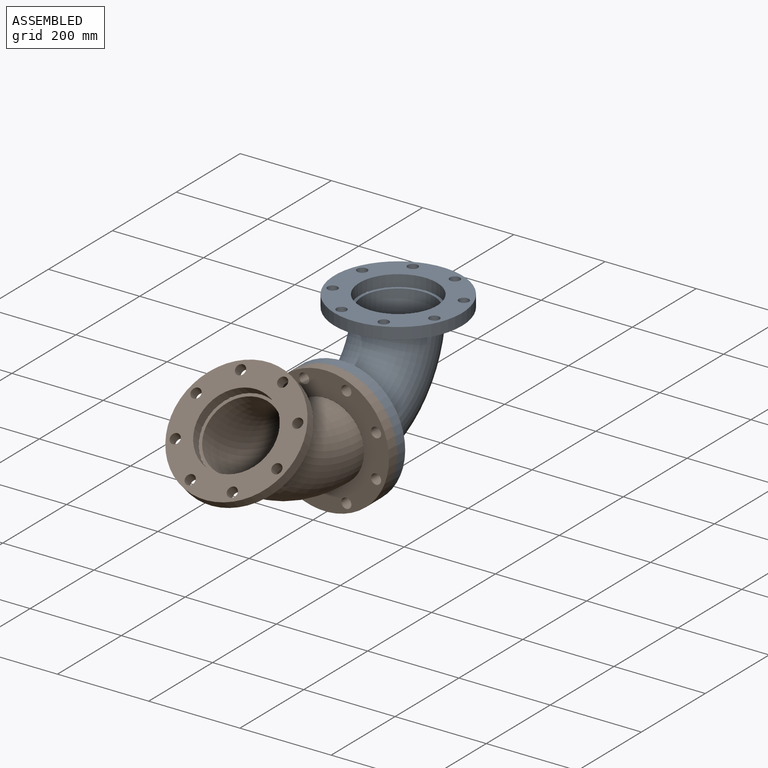
[diagram: assembled view]
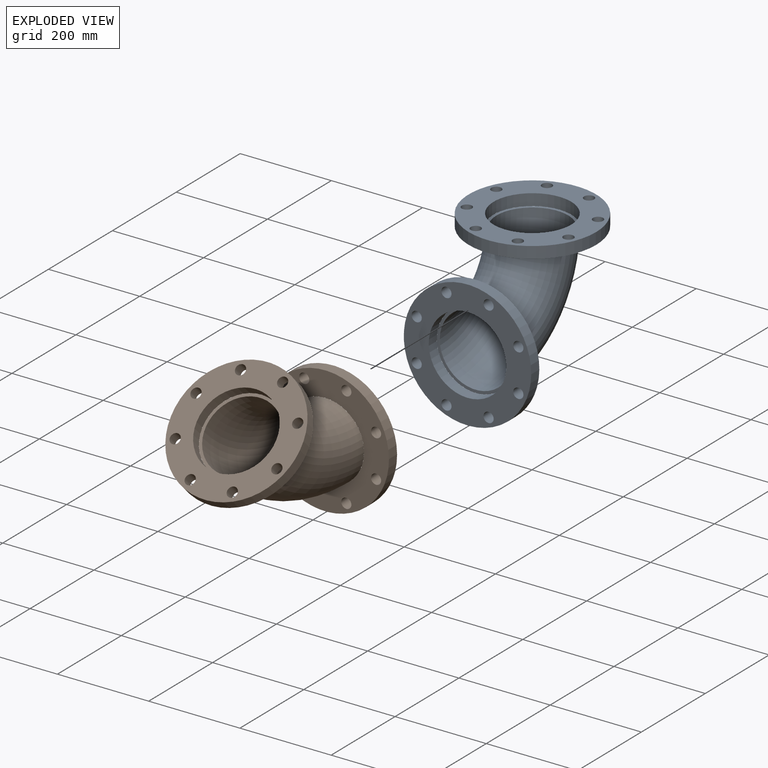
[diagram: exploded view]
GUIDED TOUR — MATED ASSEMBLY WITH SUBASSEMBLIES (Onshape document 01be604f880e54cd1879f29e, AutoMate assembly 01be604f880e54cd1879f29e_71f0f0e0feacdb94502af118_159b02445e68767dc81427c4_default)

This assembly has 6 component occurrences arranged in 2 top-level units: 0 individual components plus 2 subassemblies (S0, S1). The tour has two levels: first the top level, where each subassembly is treated as one rigid unit; then each subassembly is toured internally in its own section (nesting deeper than one subassembly level is flattened into its subassembly's section).

Components are labeled P0..P5 across the whole record; subassembly units are labeled S0..S1. A mate is a constraint between two units; its type names the relative motion it leaves free:
  CYLINDRICAL — leaves both rotation about and translation along the listed axis free,
  PLANAR — leaves sliding in the plane through the listed point (normal = the listed direction) and rotation about that normal free.
Axis/direction vectors are unit vectors and 'through' points are millimeter coordinates, both in the assembly's world frame.

TOP-LEVEL MATES (between units; each subassembly's internal mates are listed in its own section)
  1. CYLINDRICAL "Cylindrical 1": S0 <-> S1, axis (0.000, -1.000, 0.000) through (-186.74, 70.34, 268.65) mm
  2. PLANAR "Planar 1": S1 <-> S0, direction (0.000, 1.000, 0.000) through (-186.74, 44.94, 268.65) mm

TOP-LEVEL ASSEMBLY ORDER
  1. S1 — the base component [order verified]
  2. S0 [order verified]
Order-tag legend:
  [order verified] — this step's position reverses a verified removal order: the component was checked to insert without passing through the ones already placed.

Of the 6 component occurrences, 4 carry the full construction recipe — the FeatureScript program that regenerates the part's solid from scratch; the rest are supplied as boundary geometry only. Each toured unit is shown spotlighted twice — assembled, then exploded with a leader line back to its socket (green = recipe-attached component, orange = geometry-only, blue = subassembly unit; the rest desaturated gray).
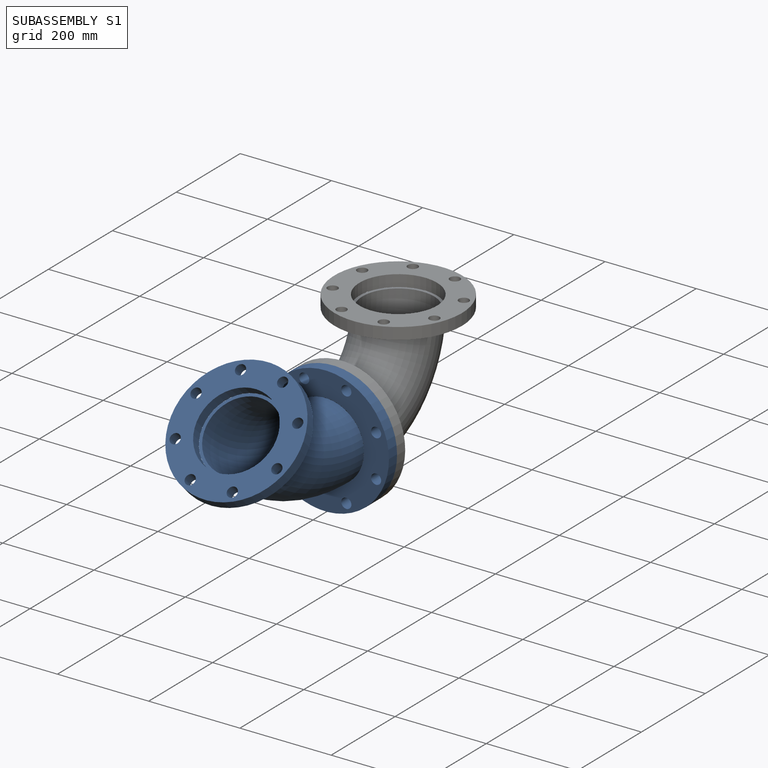
[diagram: subassembly S1 — assembled]
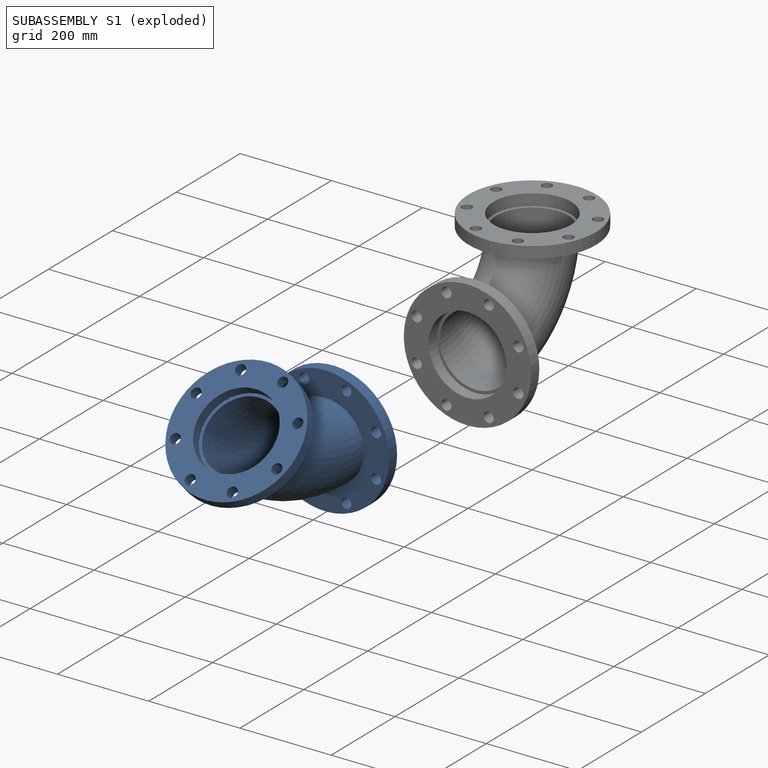
[diagram: subassembly S1 — exploded]
SUBASSEMBLY S1 — 3 components (P1, P2, P5), of which 2 recipe-attached; toured below.
Held by: CYLINDRICAL mate "Cylindrical 1" to S0; PLANAR mate "Planar 1" to S0.
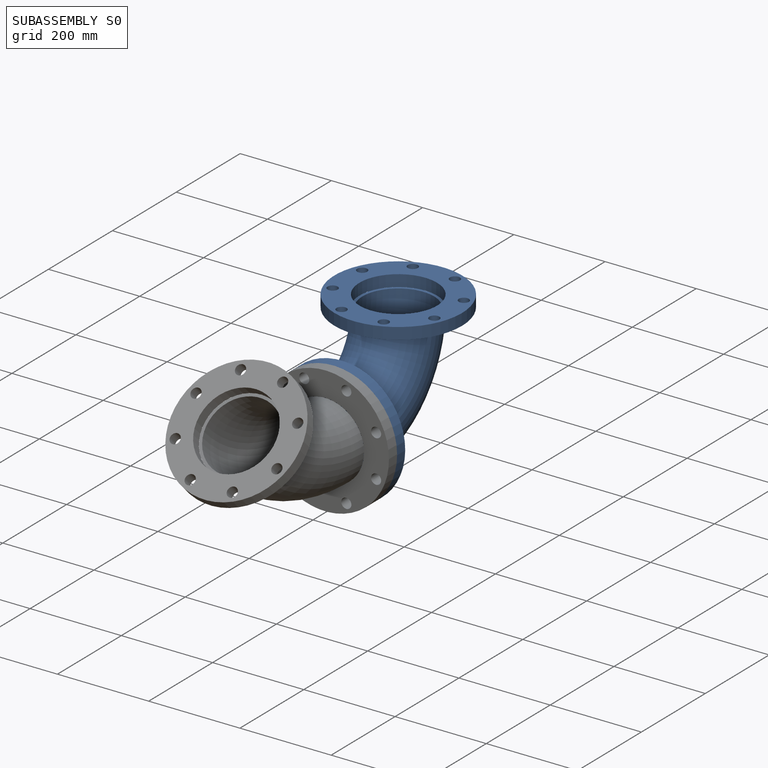
[diagram: subassembly S0 — assembled]
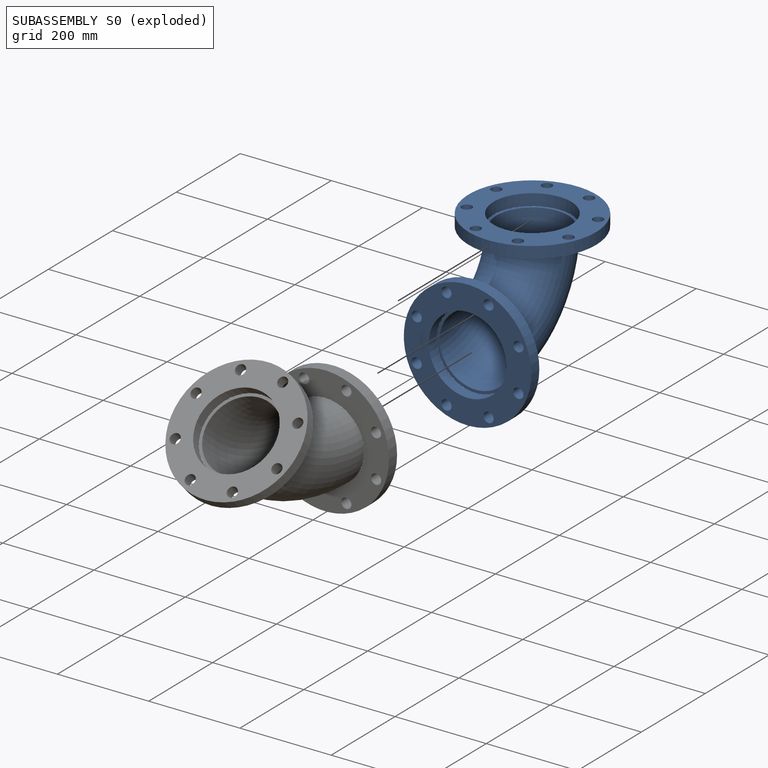
[diagram: subassembly S0 — exploded]
SUBASSEMBLY S0 — 3 components (P0, P3, P4), of which 2 recipe-attached; toured below.
Held by: CYLINDRICAL mate "Cylindrical 1" to S1; PLANAR mate "Planar 1" to S1.
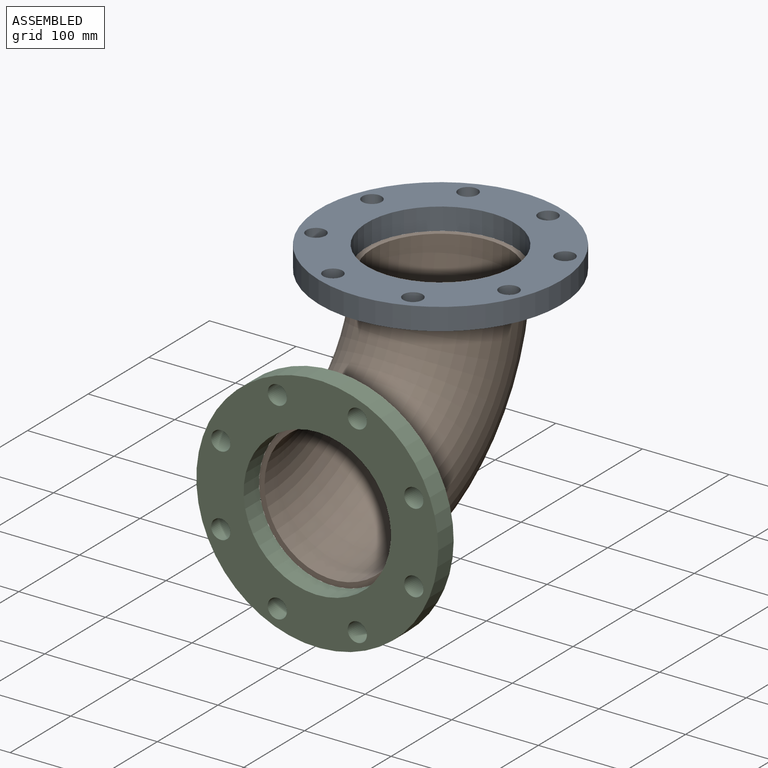
[diagram: subassembly S0 — assembled view]
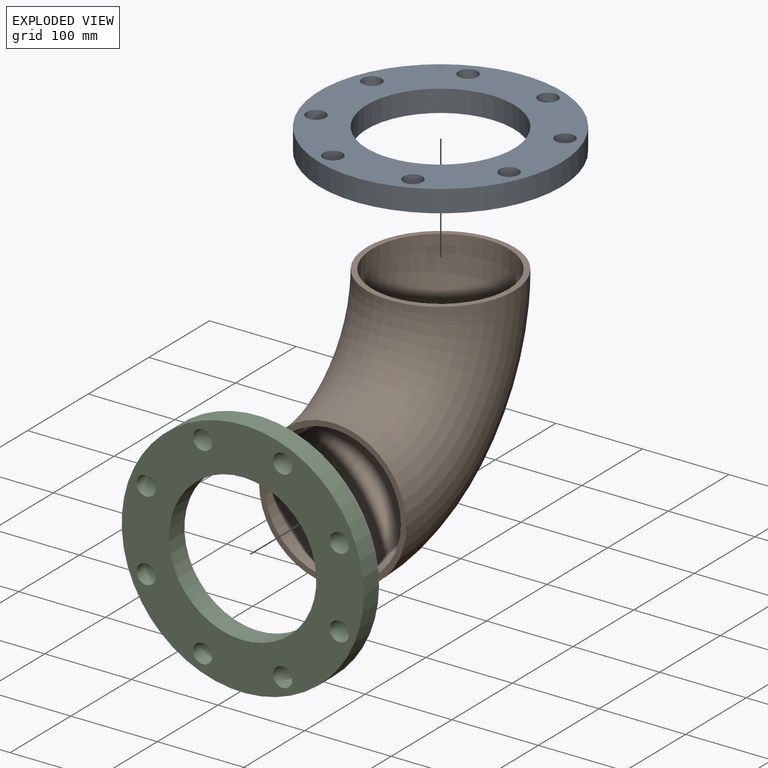
[diagram: subassembly S0 — exploded view]
SUBASSEMBLY S0 TOUR — 3 components, shown here in isolation at its own camera.

INTERNAL MATES
  1. PLANAR "Planar 2": P0 <-> P3, direction (0.000, 0.000, -1.000) through (-186.74, 248.14, 446.45) mm
  2. CYLINDRICAL "Cylindrical 1": P4 <-> P3, axis (0.000, -1.000, 0.000) through (-186.74, 44.94, 268.65) mm
  3. PLANAR "Planar 1": P4 <-> P3, direction (0.000, 1.000, 0.000) through (-186.74, 70.34, 268.65) mm
  4. CYLINDRICAL "Cylindrical 2": P0 <-> P3, axis (0.000, 0.000, 1.000) through (-186.74, 248.14, 471.85) mm

ASSEMBLY ORDER (within the subassembly)
  1. P3 — the base component [order verified]
  2. P0 [order verified]
  3. P4 [order verified]
Order-tag legend:
  [order verified] — this step's position reverses a verified removal order: the component was checked to insert without passing through the ones already placed.
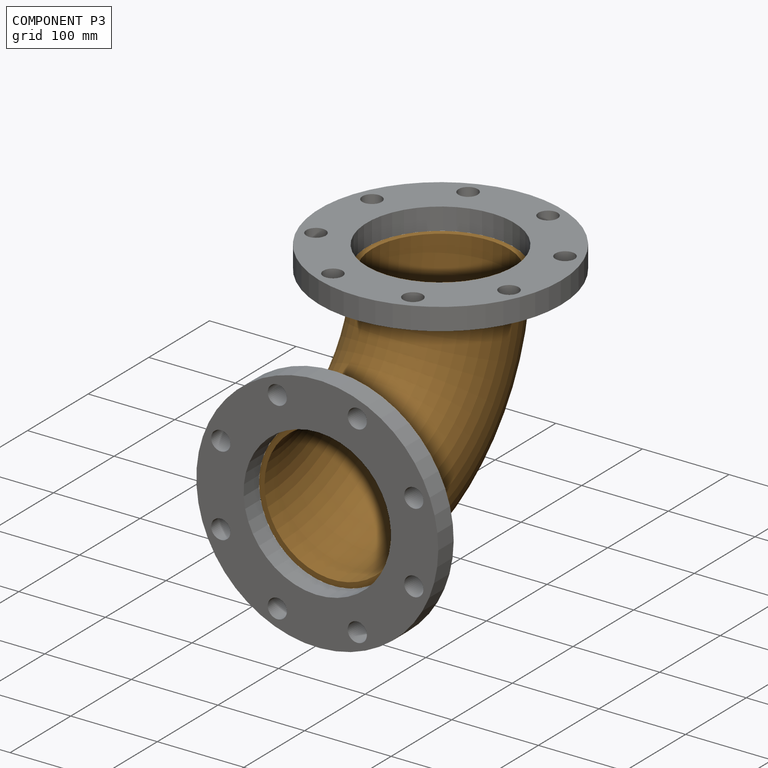
[diagram: component P3 — assembled]
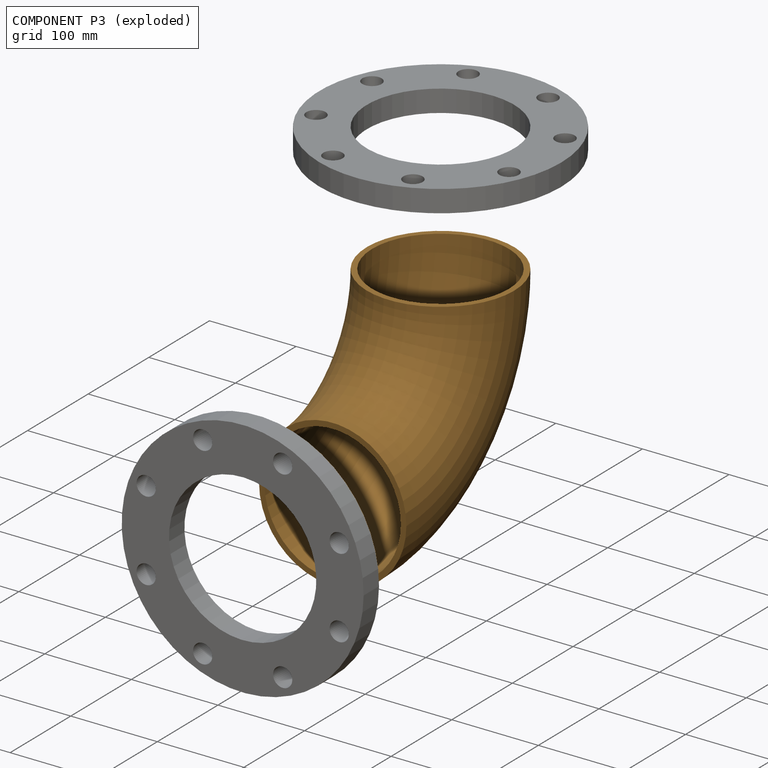
[diagram: component P3 — exploded]
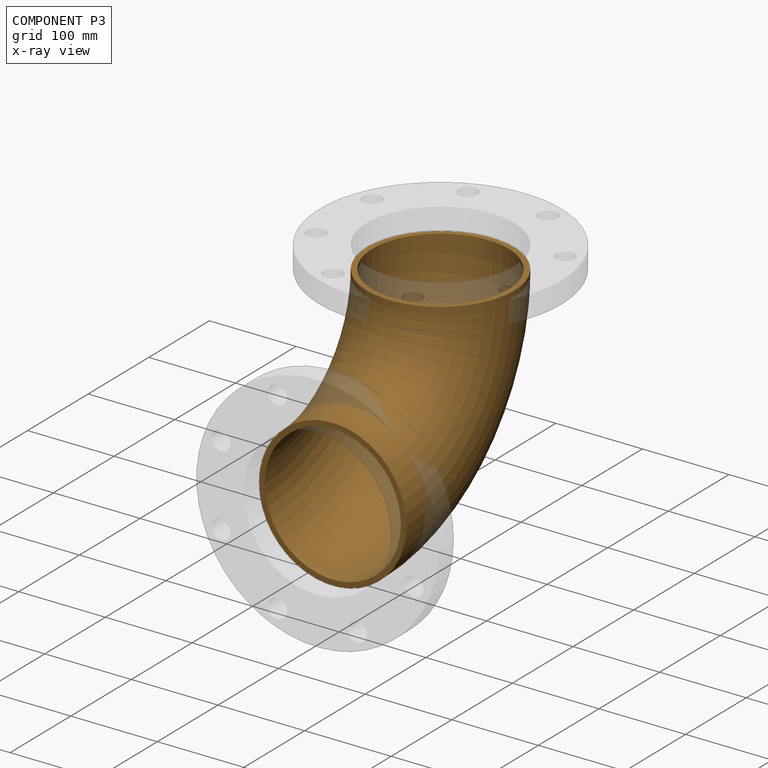
[diagram: component P3 — x-ray view]
COMPONENT P3 — geometry summary (no construction recipe available for this part):
  bounding box: 284.6 x 284.6 x 170.2 mm
  B-rep topology: 1 solid, 4 faces, 12 edges
  volume: 912785 mm^3 (7% of its bounding box)
  symmetry: mirror-symmetric across its x mid-plane
Held by: PLANAR mate "Planar 2" to P0; CYLINDRICAL mate "Cylindrical 1" to P4; PLANAR mate "Planar 1" to P4; CYLINDRICAL mate "Cylindrical 2" to P0.
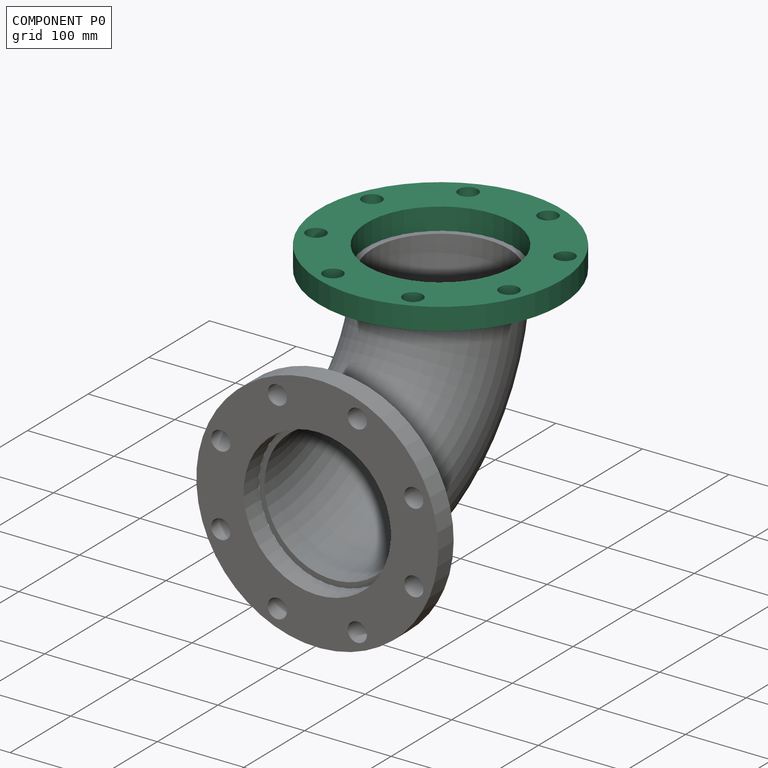
[diagram: component P0 — assembled]
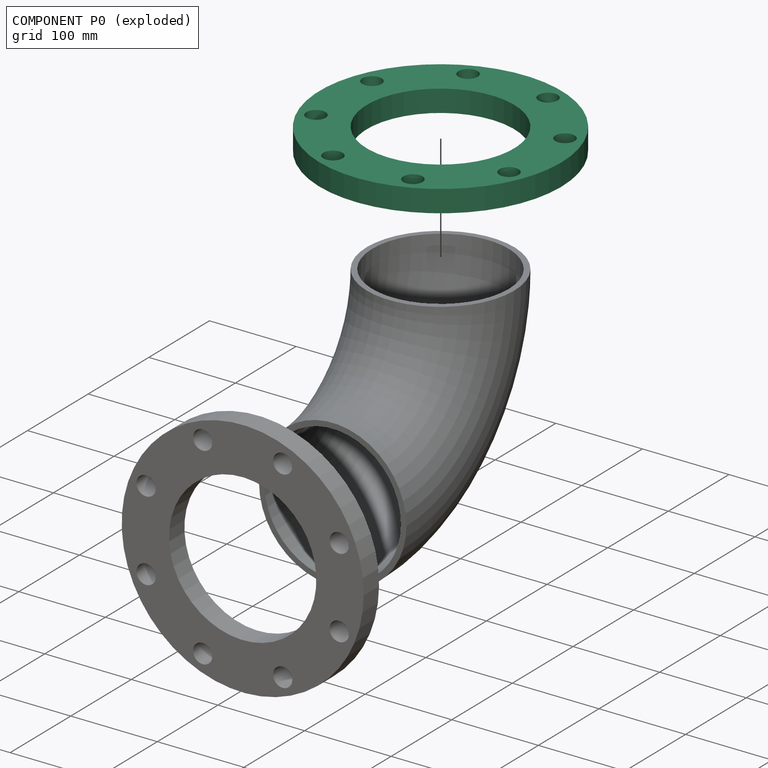
[diagram: component P0 — exploded]
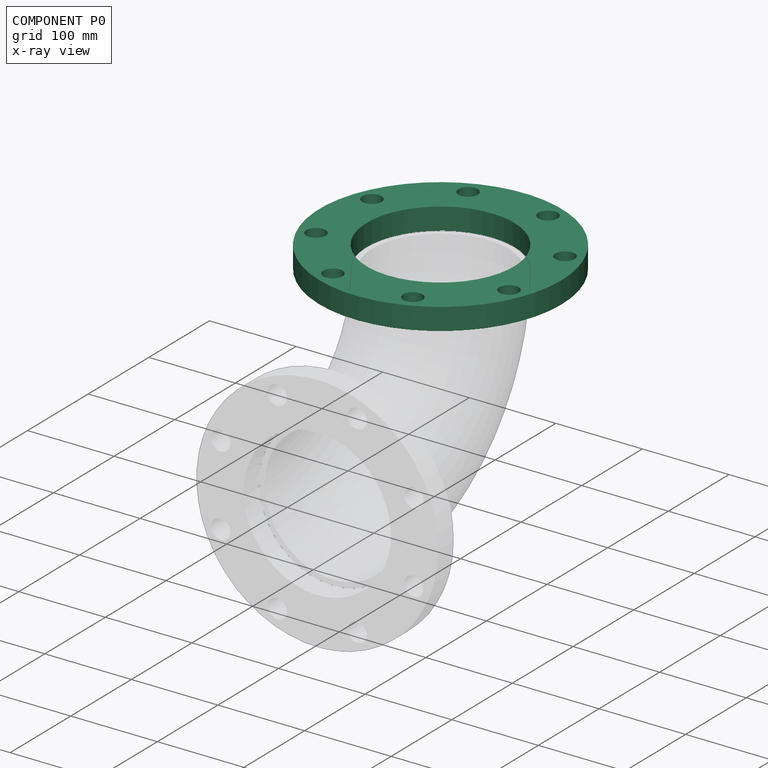
[diagram: component P0 — x-ray view]
COMPONENT P0 — recipe-attached (CADFS 00393971, mesh-verified: the recipe's output STEP matches this component's geometry to below the mesh-comparison resolution (tessellation chordal tolerance ~0.593 mm)).
Held by: PLANAR mate "Planar 2" to P3; CYLINDRICAL mate "Cylindrical 2" to P3.
Construction recipe (FeatureScript — the CAD program that rebuilds this solid; sketch coordinates are in the units given by the * unit suffixes, e.g. mm):

FeatureScript 1511;
import(path : "onshape/std/geometry.fs", version : "1511.0");
import(path : "onshape/std/common.fs", version : "1511.0");
const mm = millimeter;
const VERTEX = EntityType.VERTEX;
const EDGE = EntityType.EDGE;
const FACE = EntityType.FACE;
const BODY = EntityType.BODY;
function v(x, y){return vector(x, y);}
function OD(order){return orderDisambiguation(order);}
function OSD(set){return originalSetDisambiguation(set);}
function TD(topology){return topologyDisambiguation(topology);}
function TDD(query){return trueDependencyDisambiguation(query);}
function sQuery(a, b, c) {return sketchEntityQuery(a, b, c);}

annotation { "Feature Type Name" : "Feature", "Feature Type Description" : "" }
export const myFeature = defineFeature(function(context is Context, id is Id, definition is map)
    precondition{}
    {
        {
            var Q0;
            Q0=qCreatedBy(makeId("Front.planeOp"),FACE);
            var sketch = newSketch(context, id + "F0", { "sketchPlane" : qUnion([Q0])});
            skCircle(sketch, "E0", {"center": v(0, 0) * mm, "radius": 139.7 * mm});
            skCircle(sketch, "E1", {"center": v(0, 0) * mm, "radius": 85.1 * mm});
            skSolve(sketch);
        }
        {
            var Q0;
            Q0 = qSketchRegion(id + "F0", true);
            extrude(context, id + "F1", {"entities" : qUnion([Q0]), "depth" : 25.4 * mm});
        }
        {
            var Q0;
            Q0=makeQuery(id+"F1.opExtrude","CAP_FACE",FACE,{"disambiguationData":[OSD([sQuery(id+"F0.wireOp",EDGE,"E0"),sQuery(id+"F0.wireOp",EDGE,"E1")])],"isStart":false});
            var sketch = newSketch(context, id + "F2", { "sketchPlane" : qUnion([Q0])});
            skPoint(sketch, "E2", {"position": v(0, 120.65) * mm});
            skCircle(sketch, "E3", {"center": v(0, 0) * mm, "radius": 120.65 * mm, "construction": true});
            skPoint(sketch, "E4", {"position": v(-120.65, 0) * mm});
            skPoint(sketch, "E5", {"position": v(0, -120.65) * mm});
            skPoint(sketch, "E6", {"position": v(120.65, 0) * mm});
            skPoint(sketch, "E7", {"position": v(85.31, -85.31) * mm});
            skPoint(sketch, "E8", {"position": v(-85.31, -85.31) * mm});
            skPoint(sketch, "E9", {"position": v(-85.31, 85.31) * mm});
            skLineSegment(sketch, "E10", {"start": v(0, 0) * mm, "end": v(-124.95, -124.95) * mm, "construction": true});
            skPoint(sketch, "E11", {"position": v(85.31, 85.31) * mm});
            skSolve(sketch);
        }
        {
            var Q0;
            Q0=sQuery(id+"F2.wireOp",VERTEX,"E9");
            var Q1;
            Q1=sQuery(id+"F2.wireOp",VERTEX,"E2");
            var Q2;
            Q2=sQuery(id+"F2.wireOp",VERTEX,"E11");
            var Q3;
            Q3=sQuery(id+"F2.wireOp",VERTEX,"E6");
            var Q4;
            Q4=sQuery(id+"F2.wireOp",VERTEX,"E7");
            var Q5;
            Q5=sQuery(id+"F2.wireOp",VERTEX,"E5");
            var Q6;
            Q6=sQuery(id+"F2.wireOp",VERTEX,"E8");
            var Q7;
            Q7=sQuery(id+"F2.wireOp",VERTEX,"E4");
            var Q8;
            Q8=makeQuery(id+"F1.opExtrude","SWEPT_BODY",BODY,{"disambiguationData":[OSD([sQuery(id+"F0.wireOp",EDGE,"E0"),sQuery(id+"F0.wireOp",EDGE,"E1")])]});
            hole(context, id + "F3", {"style" : HoleStyle.SIMPLE, "endStyle" : HoleEndStyle.THROUGH, "holeDiameter" : 22.22 * mm, "isTappedThrough" : true, "tappedDepth" : 12.7 * mm, "tapClearance" : 3, "locations" : qUnion([Q0, Q1, Q2, Q3, Q4, Q5, Q6, Q7]), "scope" : qUnion([Q8])});
        }
    });
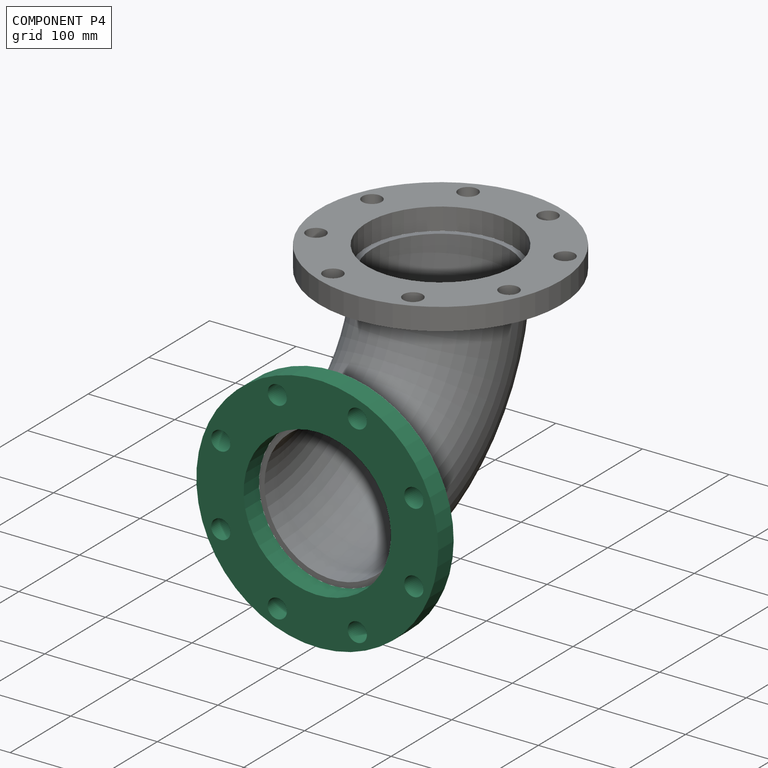
[diagram: component P4 — assembled]
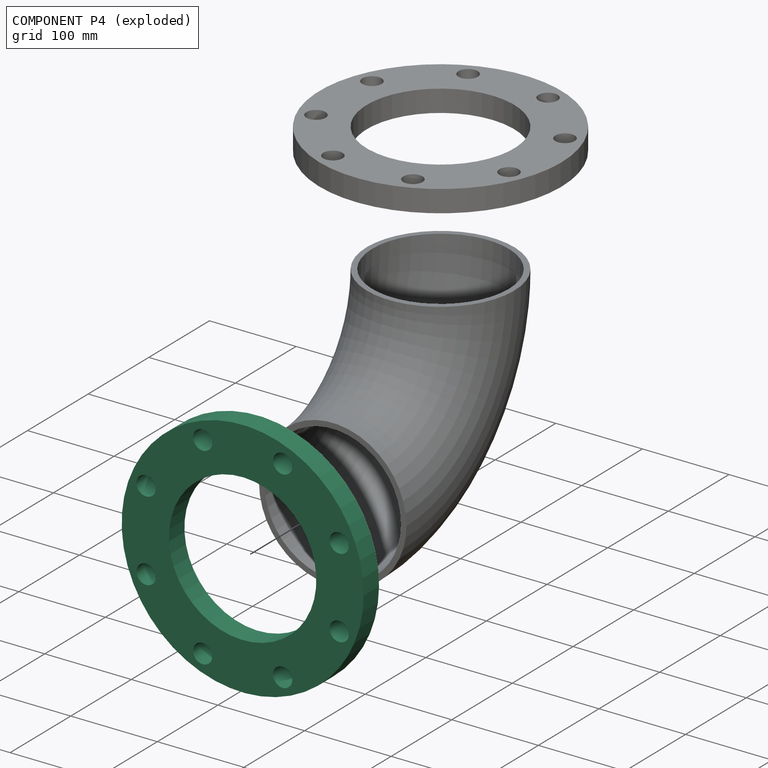
[diagram: component P4 — exploded]
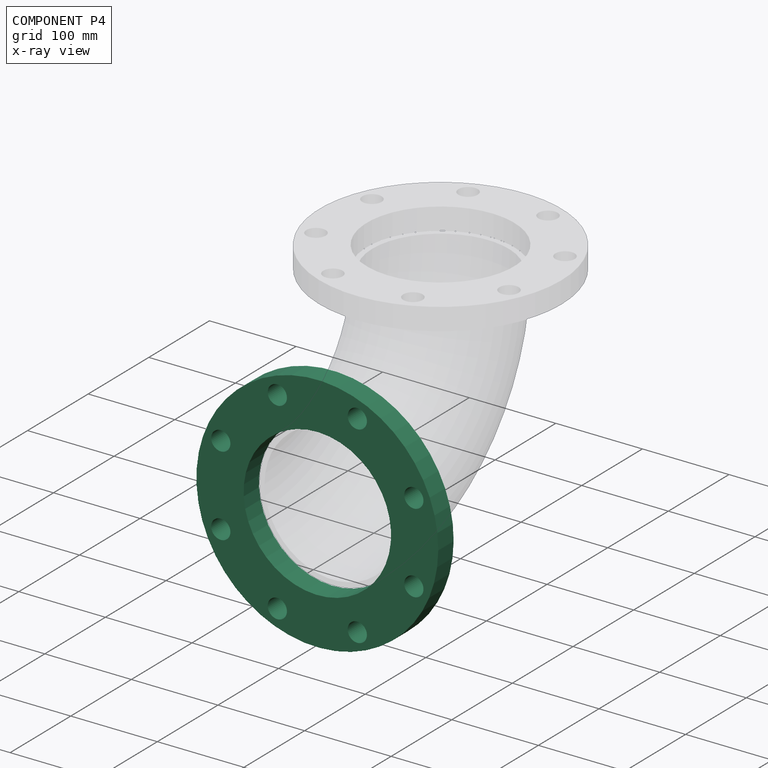
[diagram: component P4 — x-ray view]
COMPONENT P4 — same part as P0 (CADFS 00393971); its construction recipe is shown at P0.
Held by: CYLINDRICAL mate "Cylindrical 1" to P3; PLANAR mate "Planar 1" to P3.
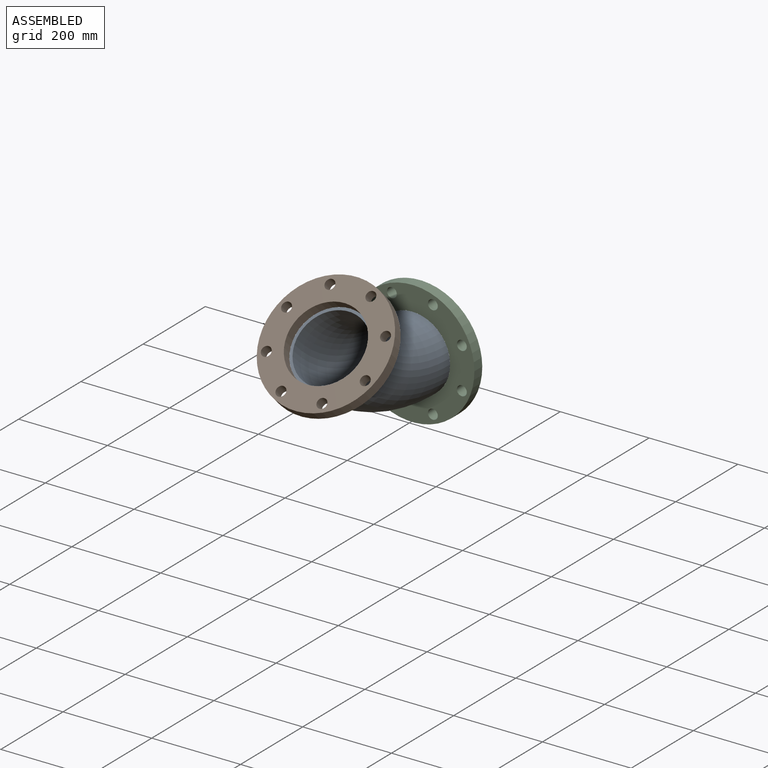
[diagram: subassembly S1 — assembled view]
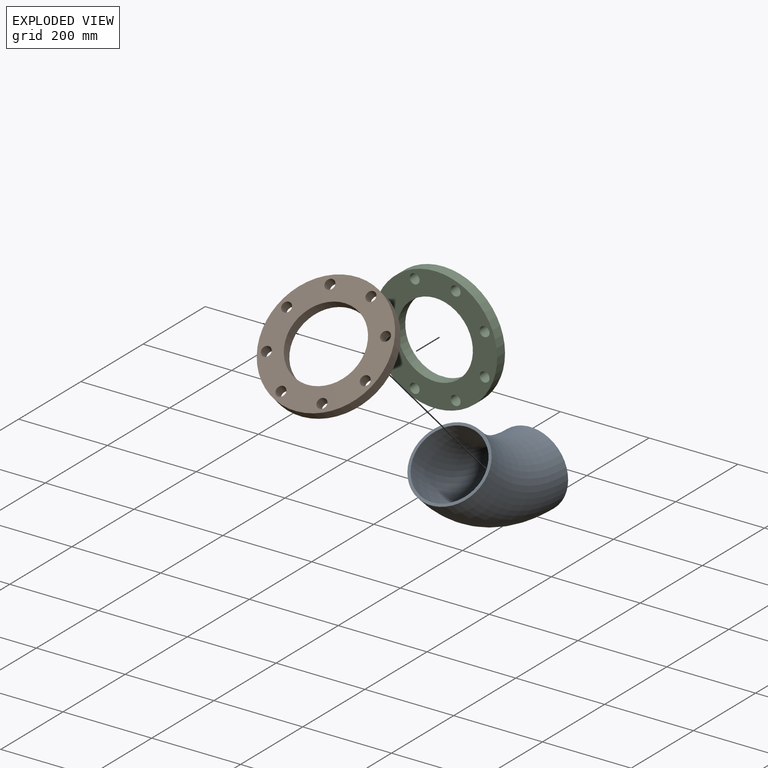
[diagram: subassembly S1 — exploded view]
SUBASSEMBLY S1 TOUR — 3 components, shown here in isolation at its own camera.

INTERNAL MATES
  1. PLANAR "Planar 1": P2 <-> P1, direction (0.000, 0.707, -0.707) through (-186.74, -240.63, 376.42) mm
  2. CYLINDRICAL "Cylindrical 2": P1 <-> P5, axis (0.000, 1.000, 0.000) through (-186.74, 19.54, 268.65) mm
  3. CYLINDRICAL "Cylindrical 1": P2 <-> P1, axis (0.000, 0.707, -0.707) through (-186.74, -249.61, 385.40) mm
  4. PLANAR "Planar 2": P5 <-> P1, direction (0.000, -1.000, 0.000) through (-186.74, 19.54, 268.65) mm
  5. PLANAR "Planar 2": P5 <-> P1, direction (0.000, -1.000, 0.000) through (-186.74, 19.54, 268.65) mm
  6. PLANAR "Planar 1": P2 <-> P1, direction (0.000, 0.707, -0.707) through (-186.74, -240.63, 376.42) mm
  7. CYLINDRICAL "Cylindrical 1": P2 <-> P1, axis (0.000, 0.707, -0.707) through (-186.74, -249.61, 385.40) mm
  8. CYLINDRICAL "Cylindrical 2": P1 <-> P5, axis (0.000, 1.000, 0.000) through (-186.74, 19.54, 268.65) mm

ASSEMBLY ORDER (within the subassembly)
  1. P2 — the base component [order verified]
  2. P1 [order verified]
  3. P5 [order verified]
Order-tag legend:
  [order verified] — this step's position reverses a verified removal order: the component was checked to insert without passing through the ones already placed.
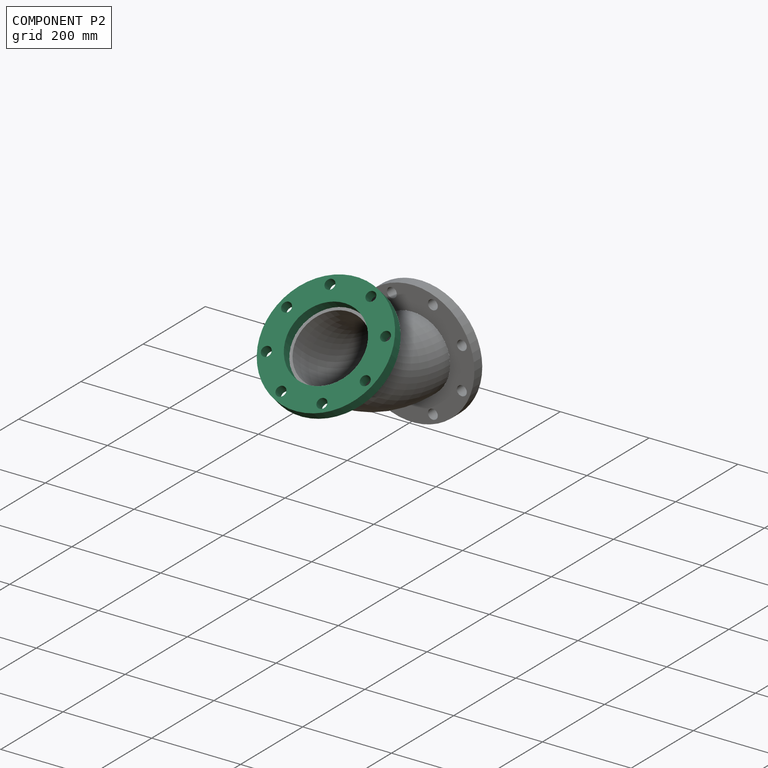
[diagram: component P2 — assembled]
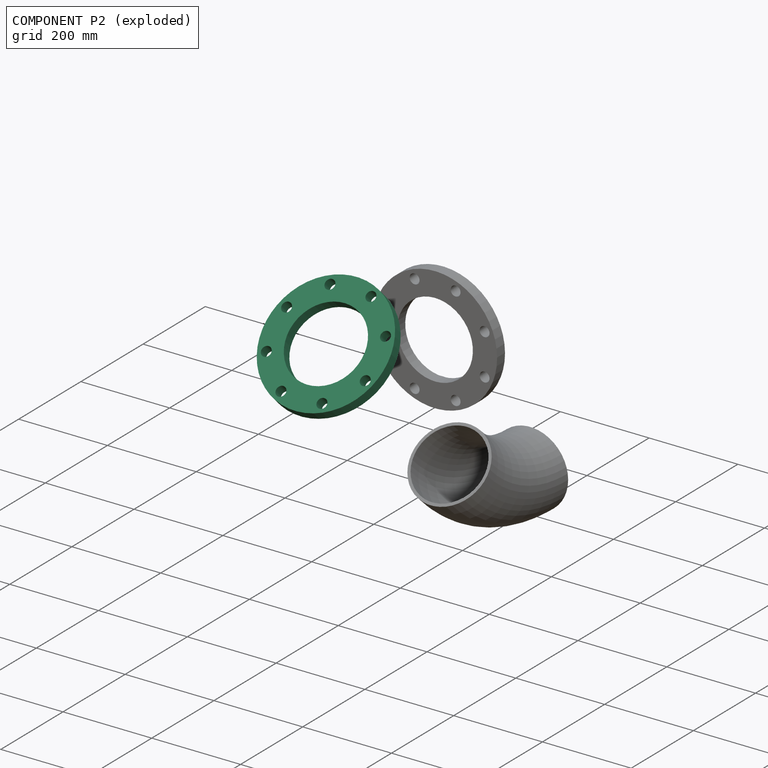
[diagram: component P2 — exploded]
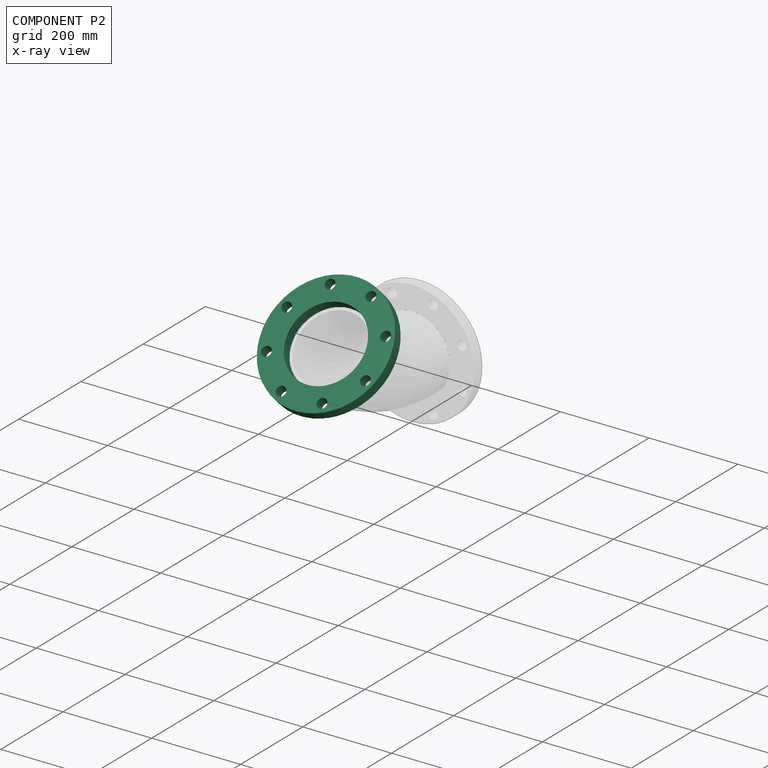
[diagram: component P2 — x-ray view]
COMPONENT P2 — recipe-attached (CADFS 00393971, mesh-verified: the recipe's output STEP matches this component's geometry to below the mesh-comparison resolution (tessellation chordal tolerance ~0.593 mm)).
Held by: PLANAR mate "Planar 1" to P1; CYLINDRICAL mate "Cylindrical 1" to P1; PLANAR mate "Planar 1" to P1; CYLINDRICAL mate "Cylindrical 1" to P1.
Construction recipe (FeatureScript — the CAD program that rebuilds this solid; sketch coordinates are in the units given by the * unit suffixes, e.g. mm):

FeatureScript 1511;
import(path : "onshape/std/geometry.fs", version : "1511.0");
import(path : "onshape/std/common.fs", version : "1511.0");
const mm = millimeter;
const VERTEX = EntityType.VERTEX;
const EDGE = EntityType.EDGE;
const FACE = EntityType.FACE;
const BODY = EntityType.BODY;
function v(x, y){return vector(x, y);}
function OD(order){return orderDisambiguation(order);}
function OSD(set){return originalSetDisambiguation(set);}
function TD(topology){return topologyDisambiguation(topology);}
function TDD(query){return trueDependencyDisambiguation(query);}
function sQuery(a, b, c) {return sketchEntityQuery(a, b, c);}

annotation { "Feature Type Name" : "Feature", "Feature Type Description" : "" }
export const myFeature = defineFeature(function(context is Context, id is Id, definition is map)
    precondition{}
    {
        {
            var Q0;
            Q0=qCreatedBy(makeId("Front.planeOp"),FACE);
            var sketch = newSketch(context, id + "F0", { "sketchPlane" : qUnion([Q0])});
            skCircle(sketch, "E0", {"center": v(0, 0) * mm, "radius": 139.7 * mm});
            skCircle(sketch, "E1", {"center": v(0, 0) * mm, "radius": 85.1 * mm});
            skSolve(sketch);
        }
        {
            var Q0;
            Q0 = qSketchRegion(id + "F0", true);
            extrude(context, id + "F1", {"entities" : qUnion([Q0]), "depth" : 25.4 * mm});
        }
        {
            var Q0;
            Q0=makeQuery(id+"F1.opExtrude","CAP_FACE",FACE,{"disambiguationData":[OSD([sQuery(id+"F0.wireOp",EDGE,"E0"),sQuery(id+"F0.wireOp",EDGE,"E1")])],"isStart":false});
            var sketch = newSketch(context, id + "F2", { "sketchPlane" : qUnion([Q0])});
            skPoint(sketch, "E2", {"position": v(0, 120.65) * mm});
            skCircle(sketch, "E3", {"center": v(0, 0) * mm, "radius": 120.65 * mm, "construction": true});
            skPoint(sketch, "E4", {"position": v(-120.65, 0) * mm});
            skPoint(sketch, "E5", {"position": v(0, -120.65) * mm});
            skPoint(sketch, "E6", {"position": v(120.65, 0) * mm});
            skPoint(sketch, "E7", {"position": v(85.31, -85.31) * mm});
            skPoint(sketch, "E8", {"position": v(-85.31, -85.31) * mm});
            skPoint(sketch, "E9", {"position": v(-85.31, 85.31) * mm});
            skLineSegment(sketch, "E10", {"start": v(0, 0) * mm, "end": v(-124.95, -124.95) * mm, "construction": true});
            skPoint(sketch, "E11", {"position": v(85.31, 85.31) * mm});
            skSolve(sketch);
        }
        {
            var Q0;
            Q0=sQuery(id+"F2.wireOp",VERTEX,"E9");
            var Q1;
            Q1=sQuery(id+"F2.wireOp",VERTEX,"E2");
            var Q2;
            Q2=sQuery(id+"F2.wireOp",VERTEX,"E11");
            var Q3;
            Q3=sQuery(id+"F2.wireOp",VERTEX,"E6");
            var Q4;
            Q4=sQuery(id+"F2.wireOp",VERTEX,"E7");
            var Q5;
            Q5=sQuery(id+"F2.wireOp",VERTEX,"E5");
            var Q6;
            Q6=sQuery(id+"F2.wireOp",VERTEX,"E8");
            var Q7;
            Q7=sQuery(id+"F2.wireOp",VERTEX,"E4");
            var Q8;
            Q8=makeQuery(id+"F1.opExtrude","SWEPT_BODY",BODY,{"disambiguationData":[OSD([sQuery(id+"F0.wireOp",EDGE,"E0"),sQuery(id+"F0.wireOp",EDGE,"E1")])]});
            hole(context, id + "F3", {"style" : HoleStyle.SIMPLE, "endStyle" : HoleEndStyle.THROUGH, "holeDiameter" : 22.22 * mm, "isTappedThrough" : true, "tappedDepth" : 12.7 * mm, "tapClearance" : 3, "locations" : qUnion([Q0, Q1, Q2, Q3, Q4, Q5, Q6, Q7]), "scope" : qUnion([Q8])});
        }
    });
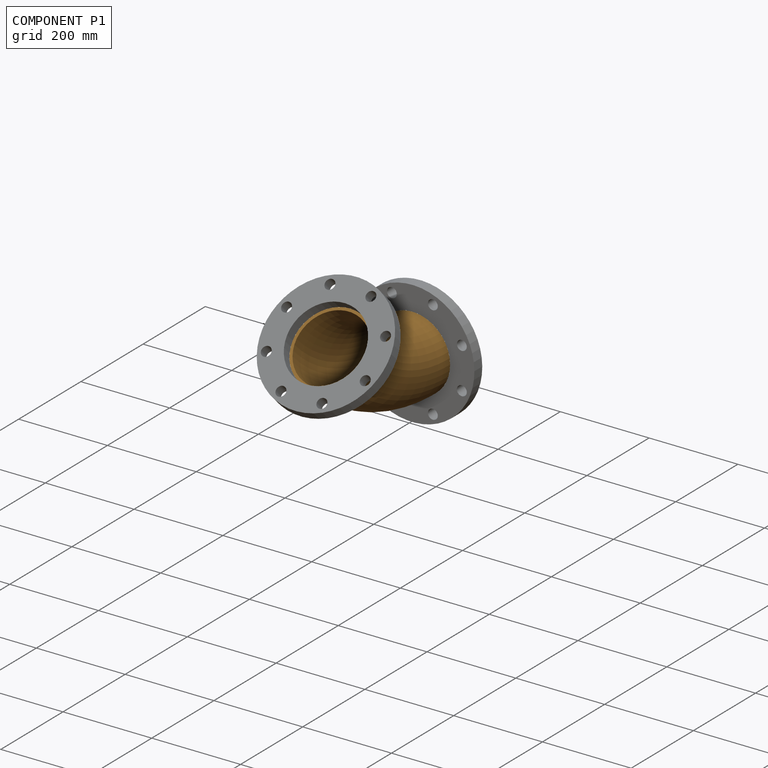
[diagram: component P1 — assembled]
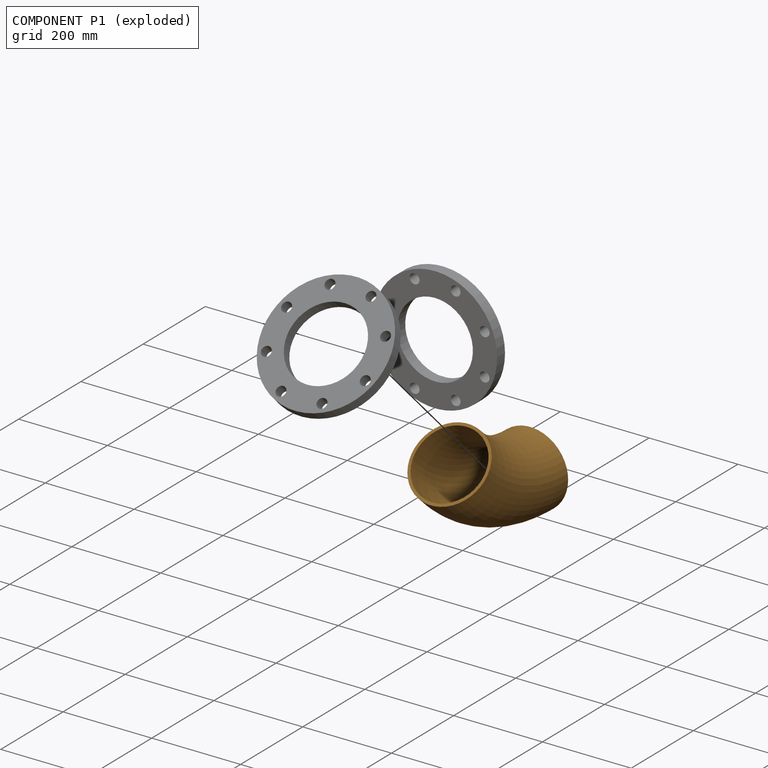
[diagram: component P1 — exploded]
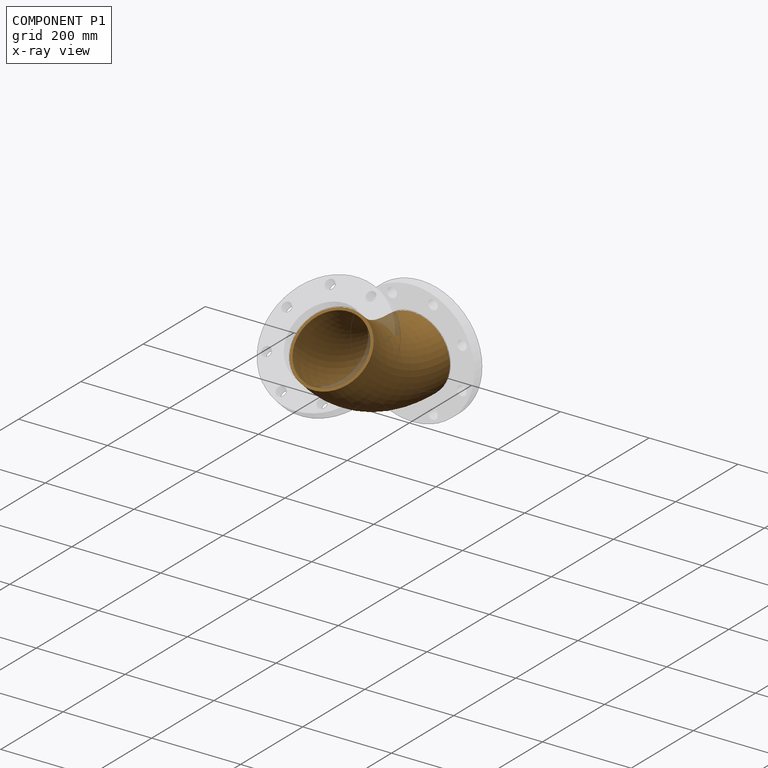
[diagram: component P1 — x-ray view]
COMPONENT P1 — geometry summary (no construction recipe available for this part):
  bounding box: 346.7 x 290.3 x 170.2 mm
  B-rep topology: 1 solid, 4 faces, 12 edges
  volume: 944425 mm^3 (6% of its bounding box)
  symmetry: mirror-symmetric across its x mid-plane
Held by: PLANAR mate "Planar 1" to P2; CYLINDRICAL mate "Cylindrical 2" to P5; CYLINDRICAL mate "Cylindrical 1" to P2; PLANAR mate "Planar 2" to P5; PLANAR mate "Planar 2" to P5; PLANAR mate "Planar 1" to P2; CYLINDRICAL mate "Cylindrical 1" to P2; CYLINDRICAL mate "Cylindrical 2" to P5.
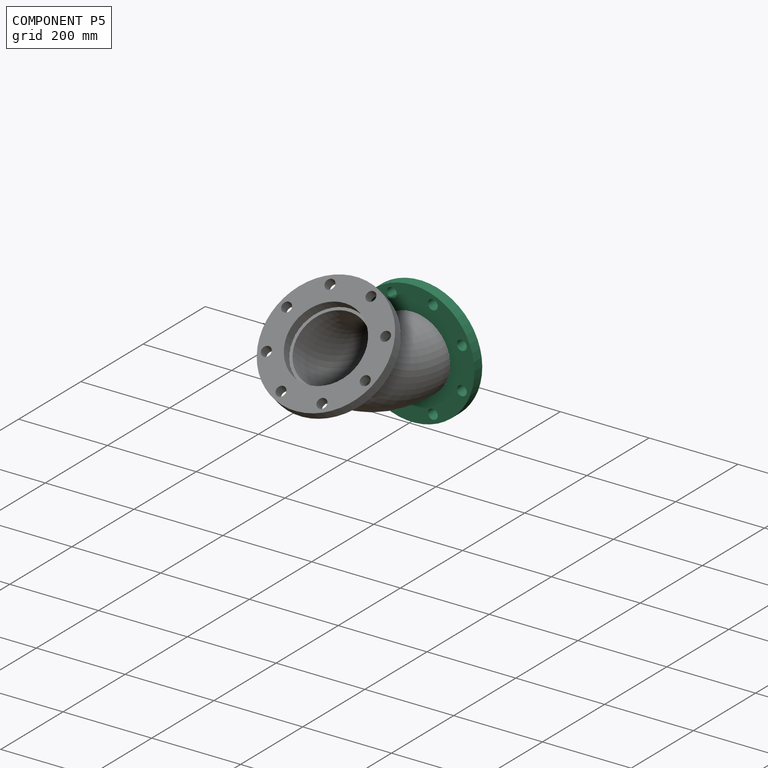
[diagram: component P5 — assembled]
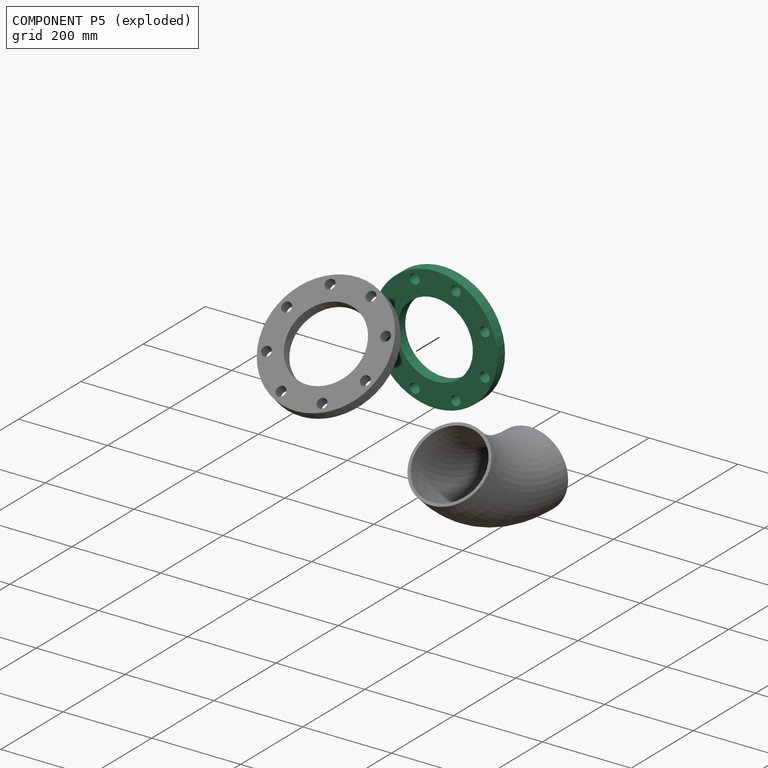
[diagram: component P5 — exploded]
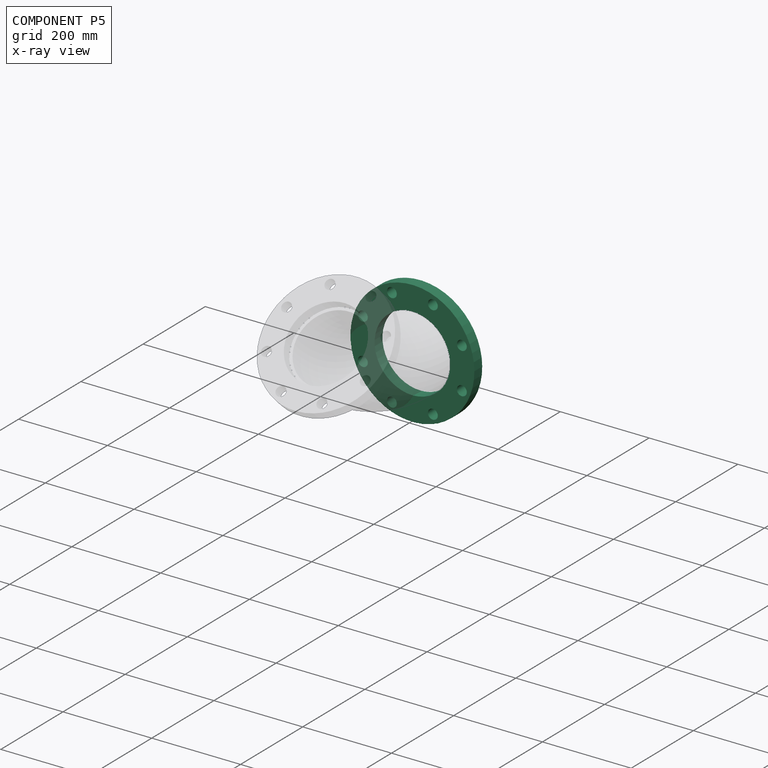
[diagram: component P5 — x-ray view]
COMPONENT P5 — recipe-attached (CADFS 00393971, mesh-verified: the recipe's output STEP matches this component's geometry to below the mesh-comparison resolution (tessellation chordal tolerance ~0.593 mm)).
Held by: CYLINDRICAL mate "Cylindrical 2" to P1; PLANAR mate "Planar 2" to P1; PLANAR mate "Planar 2" to P1; CYLINDRICAL mate "Cylindrical 2" to P1.
Construction recipe (FeatureScript — the CAD program that rebuilds this solid; sketch coordinates are in the units given by the * unit suffixes, e.g. mm):

FeatureScript 1511;
import(path : "onshape/std/geometry.fs", version : "1511.0");
import(path : "onshape/std/common.fs", version : "1511.0");
const mm = millimeter;
const VERTEX = EntityType.VERTEX;
const EDGE = EntityType.EDGE;
const FACE = EntityType.FACE;
const BODY = EntityType.BODY;
function v(x, y){return vector(x, y);}
function OD(order){return orderDisambiguation(order);}
function OSD(set){return originalSetDisambiguation(set);}
function TD(topology){return topologyDisambiguation(topology);}
function TDD(query){return trueDependencyDisambiguation(query);}
function sQuery(a, b, c) {return sketchEntityQuery(a, b, c);}

annotation { "Feature Type Name" : "Feature", "Feature Type Description" : "" }
export const myFeature = defineFeature(function(context is Context, id is Id, definition is map)
    precondition{}
    {
        {
            var Q0;
            Q0=qCreatedBy(makeId("Front.planeOp"),FACE);
            var sketch = newSketch(context, id + "F0", { "sketchPlane" : qUnion([Q0])});
            skCircle(sketch, "E0", {"center": v(0, 0) * mm, "radius": 139.7 * mm});
            skCircle(sketch, "E1", {"center": v(0, 0) * mm, "radius": 85.1 * mm});
            skSolve(sketch);
        }
        {
            var Q0;
            Q0 = qSketchRegion(id + "F0", true);
            extrude(context, id + "F1", {"entities" : qUnion([Q0]), "depth" : 25.4 * mm});
        }
        {
            var Q0;
            Q0=makeQuery(id+"F1.opExtrude","CAP_FACE",FACE,{"disambiguationData":[OSD([sQuery(id+"F0.wireOp",EDGE,"E0"),sQuery(id+"F0.wireOp",EDGE,"E1")])],"isStart":false});
            var sketch = newSketch(context, id + "F2", { "sketchPlane" : qUnion([Q0])});
            skPoint(sketch, "E2", {"position": v(0, 120.65) * mm});
            skCircle(sketch, "E3", {"center": v(0, 0) * mm, "radius": 120.65 * mm, "construction": true});
            skPoint(sketch, "E4", {"position": v(-120.65, 0) * mm});
            skPoint(sketch, "E5", {"position": v(0, -120.65) * mm});
            skPoint(sketch, "E6", {"position": v(120.65, 0) * mm});
            skPoint(sketch, "E7", {"position": v(85.31, -85.31) * mm});
            skPoint(sketch, "E8", {"position": v(-85.31, -85.31) * mm});
            skPoint(sketch, "E9", {"position": v(-85.31, 85.31) * mm});
            skLineSegment(sketch, "E10", {"start": v(0, 0) * mm, "end": v(-124.95, -124.95) * mm, "construction": true});
            skPoint(sketch, "E11", {"position": v(85.31, 85.31) * mm});
            skSolve(sketch);
        }
        {
            var Q0;
            Q0=sQuery(id+"F2.wireOp",VERTEX,"E9");
            var Q1;
            Q1=sQuery(id+"F2.wireOp",VERTEX,"E2");
            var Q2;
            Q2=sQuery(id+"F2.wireOp",VERTEX,"E11");
            var Q3;
            Q3=sQuery(id+"F2.wireOp",VERTEX,"E6");
            var Q4;
            Q4=sQuery(id+"F2.wireOp",VERTEX,"E7");
            var Q5;
            Q5=sQuery(id+"F2.wireOp",VERTEX,"E5");
            var Q6;
            Q6=sQuery(id+"F2.wireOp",VERTEX,"E8");
            var Q7;
            Q7=sQuery(id+"F2.wireOp",VERTEX,"E4");
            var Q8;
            Q8=makeQuery(id+"F1.opExtrude","SWEPT_BODY",BODY,{"disambiguationData":[OSD([sQuery(id+"F0.wireOp",EDGE,"E0"),sQuery(id+"F0.wireOp",EDGE,"E1")])]});
            hole(context, id + "F3", {"style" : HoleStyle.SIMPLE, "endStyle" : HoleEndStyle.THROUGH, "holeDiameter" : 22.22 * mm, "isTappedThrough" : true, "tappedDepth" : 12.7 * mm, "tapClearance" : 3, "locations" : qUnion([Q0, Q1, Q2, Q3, Q4, Q5, Q6, Q7]), "scope" : qUnion([Q8])});
        }
    });
PROVENANCE & LICENSES
Assembly (occurrences, transforms, mates, per-part STEP geometry): AutoMate dataset, Zenodo record 7776208, CC0.
Construction recipes: CADFS (HuggingFace VladPyatov/CADFS, CC-BY-4.0, layered over the ABC dataset), FeatureScript reconstruction programs keyed by ABC model id.
Join: ABC meta listings map ABC model id -> Onshape documentId; within a shared document, parts are matched by geometric signature (bounding-box dims + volume at 0.1% relative tolerance, exact B-rep face/solid counts).
Verification: 4 of this assembly's 6 components carry a recipe attachment, and every attachment is mesh-verified: the CADFS STEP and the AutoMate member STEP were compared as meshes in their shared local frame (symmetric sampled-point-to-mesh distance); worst across the 4 attachments: below the mesh-comparison resolution (tessellation chordal tolerance ~0.593 mm) on a 396 mm part.
Renders: orthographic iso camera (az 35 / el 25); the floor grid conveys scale (grid pitch printed in each image; no ruler). In the exploded view each component is displaced by its stored offset vector: the offsets alone carry the explosion direction (mate normal/axis signs are not orientation cues and do not encode it), and separation distances are assigned per mate-chain, not proportionally to assembly-order depth.
